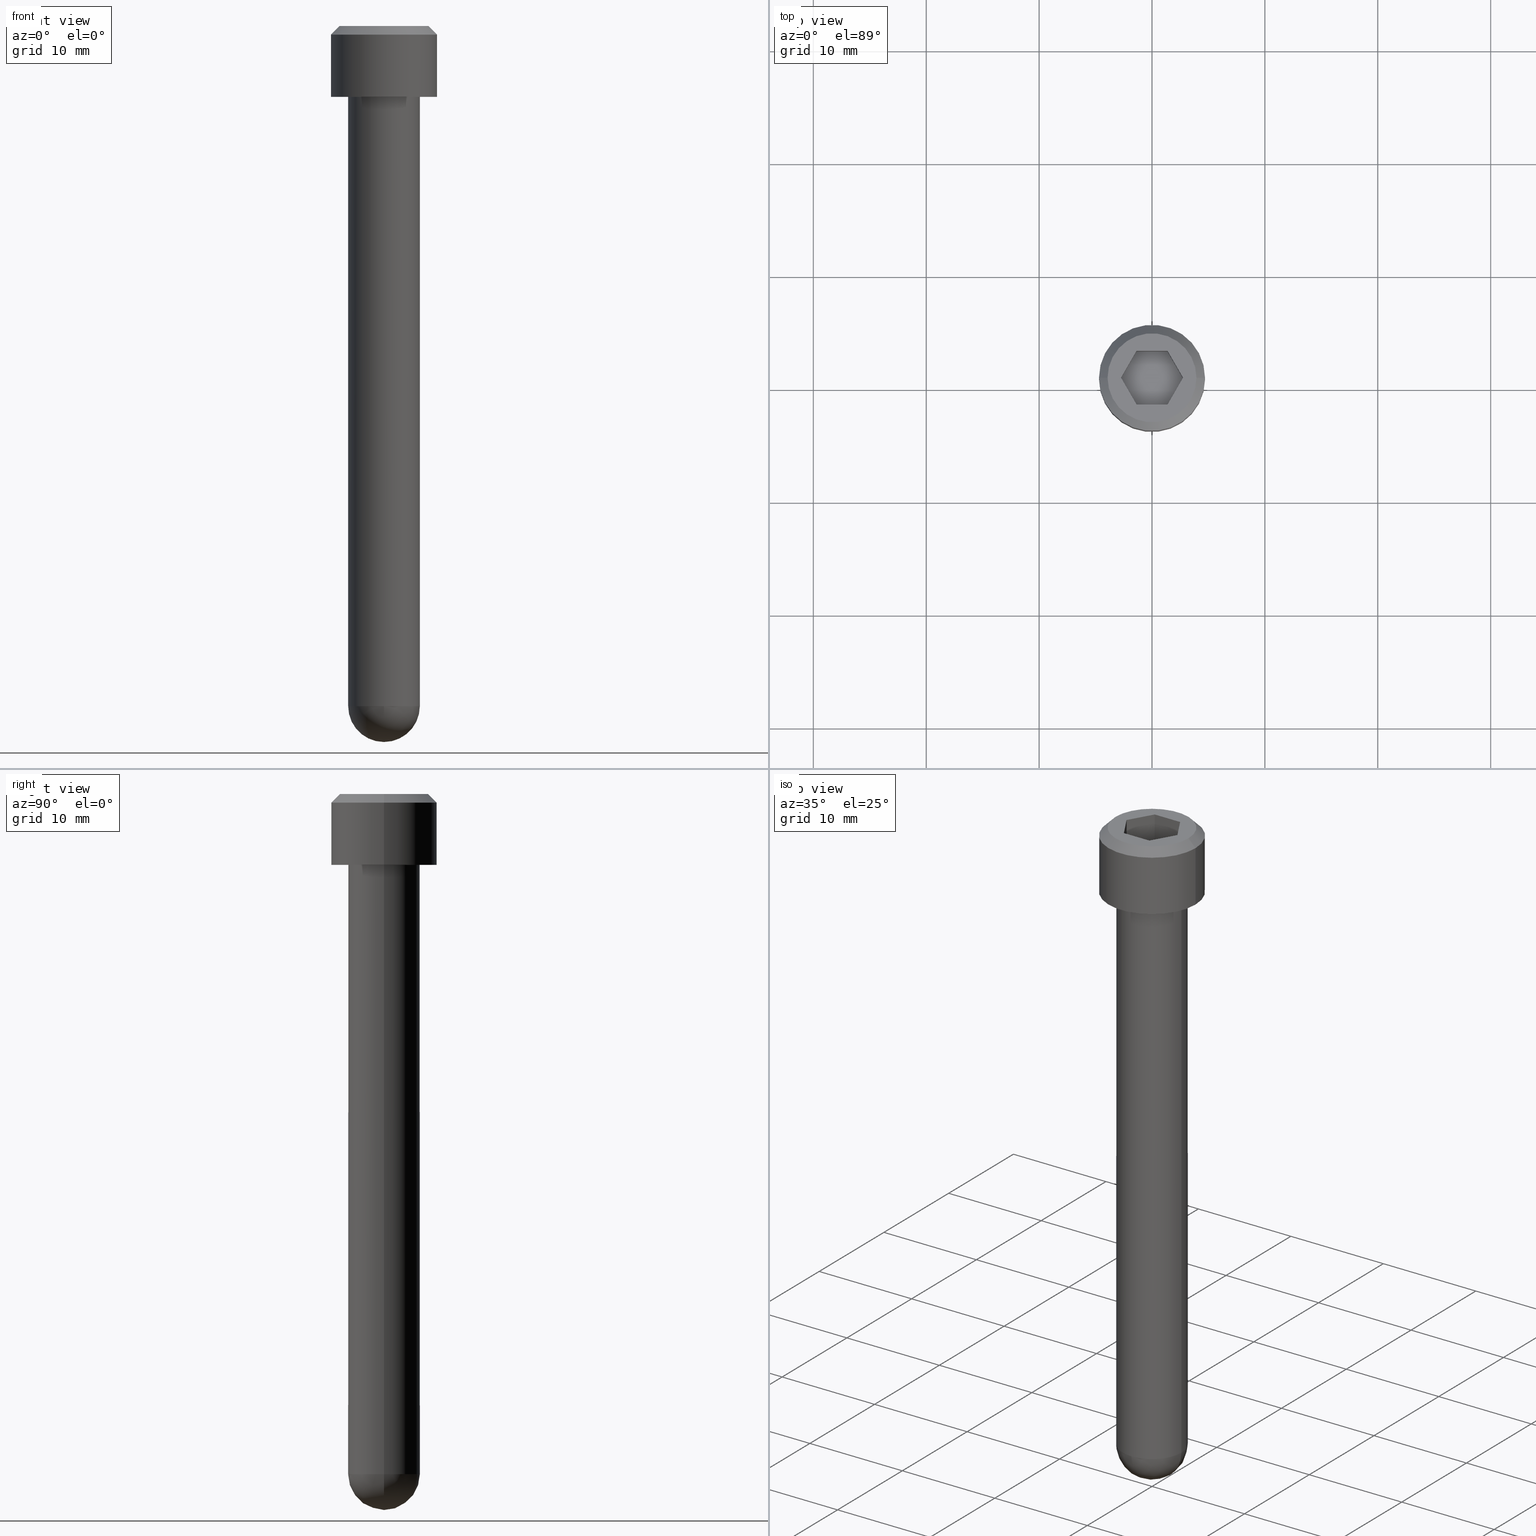
[diagram: canonical four-view strip — front | top / right | iso, engineering-drawing reading convention]
A machine part, canonical four-view strip (front | top / right | iso — engineering-drawing reading convention). The complete STEP part file that produces these views, byte-faithful:
ISO-10303-21;
HEADER;
FILE_DESCRIPTION (( 'STEP AP214' ),
    '1' );
FILE_NAME ('D030022-v1_aLIGO_Rounded_End_SHCS_0.25-20_X_2.25_Long.STEP',
    '2011-03-21T16:55:47',
    ( '' ),
    ( '' ),
    'SwSTEP 2.0',
    'SolidWorks 2010',
    '' );
FILE_SCHEMA (( 'AUTOMOTIVE_DESIGN' ));
ENDSEC;

DATA;
#1 = PRODUCT_DEFINITION_CONTEXT ( 'detailed design', #280, 'design' ) ;
#2 = PRODUCT_DEFINITION_SHAPE ( 'NONE', 'NONE',  #72 ) ;
#3 = AXIS2_PLACEMENT_3D ( 'NONE', #85, #119, #131 ) ;
#4 = AXIS2_PLACEMENT_3D ( 'NONE', #99, #127, #140 ) ;
#5 = EDGE_CURVE ( 'NONE', #193, #83, #427, .T. ) ;
#6 = EDGE_CURVE ( 'NONE', #82, #91, #375, .T. ) ;
#7 = EDGE_CURVE ( 'NONE', #263, #174, #424, .T. ) ;
#8 = EDGE_CURVE ( 'NONE', #174, #263, #445, .T. ) ;
#9 = EDGE_CURVE ( 'NONE', #192, #195, #485, .T. ) ;
#10 = EDGE_CURVE ( 'NONE', #129, #84, #480, .T. ) ;
#11 = MECHANICAL_DESIGN_GEOMETRIC_PRESENTATION_REPRESENTATION (  '', ( #28 ), #323 ) ;
#12 = EDGE_CURVE ( 'NONE', #194, #195, #501, .T. ) ;
#13 = AXIS2_PLACEMENT_3D ( 'NONE', #112, #111, #101 ) ;
#14 = EDGE_CURVE ( 'NONE', #78, #177, #500, .T. ) ;
#15 = AXIS2_PLACEMENT_3D ( 'NONE', #282, #279, #278 ) ;
#16 = AXIS2_PLACEMENT_3D ( 'NONE', #266, #275, #293 ) ;
#17 = EDGE_CURVE ( 'NONE', #188, #78, #444, .T. ) ;
#18 = AXIS2_PLACEMENT_3D ( 'NONE', #138, #162, #130 ) ;
#19 = EDGE_CURVE ( 'NONE', #83, #193, #470, .T. ) ;
#20 = EDGE_CURVE ( 'NONE', #126, #192, #324, .T. ) ;
#21 = EDGE_CURVE ( 'NONE', #78, #126, #345, .T. ) ;
#22 = AXIS2_PLACEMENT_3D ( 'NONE', #237, #238, #210 ) ;
#23 = AXIS2_PLACEMENT_3D ( 'NONE', #107, #93, #128 ) ;
#24 = AXIS2_PLACEMENT_3D ( 'NONE', #146, #160, #165 ) ;
#25 = AXIS2_PLACEMENT_3D ( 'NONE', #200, #169, #167 ) ;
#26 = AXIS2_PLACEMENT_3D ( 'NONE', #227, #216, #220 ) ;
#27 = AXIS2_PLACEMENT_3D ( 'NONE', #259, #260, #277 ) ;
#28 = STYLED_ITEM ( 'NONE', ( #503 ), #316 ) ;
#29 = AXIS2_PLACEMENT_3D ( 'NONE', #151, #202, #201 ) ;
#30 = AXIS2_PLACEMENT_3D ( 'NONE', #219, #199, #289 ) ;
#31 = PRESENTATION_LAYER_ASSIGNMENT (  '', '', ( #46 ) ) ;
#32 = AXIS2_PLACEMENT_3D ( 'NONE', #248, #176, #89 ) ;
#33 = AXIS2_PLACEMENT_3D ( 'NONE', #80, #102, #161 ) ;
#34 = EDGE_CURVE ( 'NONE', #123, #110, #341, .T. ) ;
#35 = EDGE_CURVE ( 'NONE', #129, #175, #352, .T. ) ;
#36 = EDGE_CURVE ( 'NONE', #189, #115, #421, .T. ) ;
#37 = EDGE_CURVE ( 'NONE', #188, #211, #448, .T. ) ;
#38 = EDGE_CURVE ( 'NONE', #177, #194, #474, .T. ) ;
#39 = EDGE_CURVE ( 'NONE', #192, #123, #416, .T. ) ;
#40 = EDGE_CURVE ( 'NONE', #174, #83, #388, .T. ) ;
#41 = AXIS2_PLACEMENT_3D ( 'NONE', #105, #136, #137 ) ;
#42 = EDGE_CURVE ( 'NONE', #195, #79, #428, .T. ) ;
#43 = PRODUCT_RELATED_PRODUCT_CATEGORY ( 'part', '', ( #513 ) ) ;
#44 = AXIS2_PLACEMENT_3D ( 'NONE', #294, #214, #171 ) ;
#45 = EDGE_CURVE ( 'NONE', #91, #82, #398, .T. ) ;
#46 = STYLED_ITEM ( 'NONE', ( #367 ), #320 ) ;
#47 = EDGE_CURVE ( 'NONE', #126, #194, #401, .T. ) ;
#48 = EDGE_CURVE ( 'NONE', #175, #82, #496, .T. ) ;
#49 = EDGE_CURVE ( 'NONE', #189, #83, #492, .T. ) ;
#50 = EDGE_CURVE ( 'NONE', #115, #189, #333, .T. ) ;
#51 = EDGE_CURVE ( 'NONE', #208, #211, #381, .T. ) ;
#52 = EDGE_CURVE ( 'NONE', #79, #208, #459, .T. ) ;
#53 = EDGE_CURVE ( 'NONE', #211, #177, #356, .T. ) ;
#54 = EDGE_CURVE ( 'NONE', #123, #79, #331, .T. ) ;
#55 = EDGE_CURVE ( 'NONE', #110, #188, #469, .T. ) ;
#56 = EDGE_CURVE ( 'NONE', #263, #193, #456, .T. ) ;
#57 = EDGE_CURVE ( 'NONE', #110, #208, #477, .T. ) ;
#58 = EDGE_CURVE ( 'NONE', #84, #91, #499, .T. ) ;
#59 = AXIS2_PLACEMENT_3D ( 'NONE', #106, #178, #90 ) ;
#60 = AXIS2_PLACEMENT_3D ( 'NONE', #134, #172, #255 ) ;
#61 = AXIS2_PLACEMENT_3D ( 'NONE', #156, #153, #143 ) ;
#62 = EDGE_CURVE ( 'NONE', #175, #84, #390, .T. ) ;
#63 = AXIS2_PLACEMENT_3D ( 'NONE', #215, #218, #223 ) ;
#64 = AXIS2_PLACEMENT_3D ( 'NONE', #88, #157, #86 ) ;
#65 = AXIS2_PLACEMENT_3D ( 'NONE', #203, #261, #292 ) ;
#66 = AXIS2_PLACEMENT_3D ( 'NONE', #164, #286, #287 ) ;
#67 = AXIS2_PLACEMENT_3D ( 'NONE', #170, #221, #222 ) ;
#68 = AXIS2_PLACEMENT_3D ( 'NONE', #228, #212, #226 ) ;
#69 = AXIS2_PLACEMENT_3D ( 'NONE', #288, #291, #290 ) ;
#70 = AXIS2_PLACEMENT_3D ( 'NONE', #225, #213, #274 ) ;
#71 = MECHANICAL_DESIGN_GEOMETRIC_PRESENTATION_REPRESENTATION (  '', ( #46 ), #446 ) ;
#72 = PRODUCT_DEFINITION ( 'UNKNOWN', '', #74, #1 ) ;
#73 = AXIS2_PLACEMENT_3D ( 'NONE', #144, #159, #154 ) ;
#74 = PRODUCT_DEFINITION_FORMATION_WITH_SPECIFIED_SOURCE ( 'ANY', '', #513, .NOT_KNOWN. ) ;
#75 = PRESENTATION_LAYER_ASSIGNMENT (  '', '', ( #28 ) ) ;
#76 = EDGE_CURVE ( 'NONE', #115, #193, #509, .T. ) ;
#77 = EDGE_CURVE ( 'NONE', #84, #175, #346, .T. ) ;
#78 = VERTEX_POINT ( 'NONE', #104 ) ;
#79 = VERTEX_POINT ( 'NONE', #249 ) ;
#80 = CARTESIAN_POINT ( 'NONE',  ( 0.0000000000000000000, 0.0000000000000000000, 0.0000000000000000000 ) ) ;
#81 = CARTESIAN_POINT ( 'NONE',  ( -0.05412658773652744700, 0.09375000000000002800, -0.1200000000000000000 ) ) ;
#82 = VERTEX_POINT ( 'NONE', #120 ) ;
#83 = VERTEX_POINT ( 'NONE', #117 ) ;
#84 = VERTEX_POINT ( 'NONE', #108 ) ;
#85 = CARTESIAN_POINT ( 'NONE',  ( 0.0000000000000000000, 0.0000000000000000000, -0.03000000000000012400 ) ) ;
#86 = DIRECTION ( 'NONE',  ( 1.000000000000000000, 0.0000000000000000000, 0.0000000000000000000 ) ) ;
#87 = CARTESIAN_POINT ( 'NONE',  ( -0.1549999999999999400, 0.0000000000000000000, 0.0000000000000000000 ) ) ;
#88 = CARTESIAN_POINT ( 'NONE',  ( 0.0000000000000000000, 0.0000000000000000000, -0.2469999999999998600 ) ) ;
#89 = DIRECTION ( 'NONE',  ( 1.000000000000000000, 0.0000000000000000000, 0.0000000000000000000 ) ) ;
#90 = DIRECTION ( 'NONE',  ( 0.0000000000000000000, 0.0000000000000000000, -1.000000000000000000 ) ) ;
#91 = VERTEX_POINT ( 'NONE', #97 ) ;
#92 = CARTESIAN_POINT ( 'NONE',  ( 0.1082531754730548500, 6.797912345839970600E-018, -0.1200000000000000000 ) ) ;
#93 = DIRECTION ( 'NONE',  ( -0.0000000000000000000, -0.0000000000000000000, 1.000000000000000000 ) ) ;
#94 = DIRECTION ( 'NONE',  ( -0.0000000000000000000, -0.0000000000000000000, 1.000000000000000000 ) ) ;
#95 = CARTESIAN_POINT ( 'NONE',  ( 0.1850000000000000000, 0.0000000000000000000, -0.03000000000000012400 ) ) ;
#96 = CARTESIAN_POINT ( 'NONE',  ( 7.654042494670957500E-018, 0.0000000000000000000, -2.497000000000000300 ) ) ;
#97 = CARTESIAN_POINT ( 'NONE',  ( 0.1250000000000000000, 0.0000000000000000000, -0.2469999999999998600 ) ) ;
#98 = CARTESIAN_POINT ( 'NONE',  ( 0.1850000000000000000, 0.0000000000000000000, -0.2470000000000000000 ) ) ;
#99 = CARTESIAN_POINT ( 'NONE',  ( 0.0000000000000000000, 0.0000000000000000000, -0.2470000000000000000 ) ) ;
#100 = CARTESIAN_POINT ( 'NONE',  ( 0.1082531754730548500, 6.797912345839970600E-018, -0.1200000000000000000 ) ) ;
#101 = DIRECTION ( 'NONE',  ( 1.000000000000000000, 0.0000000000000000000, 0.0000000000000000000 ) ) ;
#102 = DIRECTION ( 'NONE',  ( 0.0000000000000000000, 0.0000000000000000000, 1.000000000000000000 ) ) ;
#103 = CARTESIAN_POINT ( 'NONE',  ( 0.1549999999999999400, 1.898202538678397000E-017, 0.0000000000000000000 ) ) ;
#104 = CARTESIAN_POINT ( 'NONE',  ( 0.05412658773652740500, 0.09375000000000002800, -0.1200000000000000000 ) ) ;
#105 = CARTESIAN_POINT ( 'NONE',  ( 0.0000000000000000000, 0.0000000000000000000, -0.2469999999999998600 ) ) ;
#106 = CARTESIAN_POINT ( 'NONE',  ( 0.0000000000000000000, 0.0000000000000000000, -2.372000000000000300 ) ) ;
#107 = CARTESIAN_POINT ( 'NONE',  ( 0.0000000000000000000, 0.0000000000000000000, -2.372000000000000300 ) ) ;
#108 = CARTESIAN_POINT ( 'NONE',  ( 0.1250000000000000000, 0.0000000000000000000, -2.372000000000000300 ) ) ;
#109 = CARTESIAN_POINT ( 'NONE',  ( -0.1082531754730548500, -1.708292841017771400E-017, -0.1200000000000000000 ) ) ;
#110 = VERTEX_POINT ( 'NONE', #122 ) ;
#111 = DIRECTION ( 'NONE',  ( 0.0000000000000000000, 0.0000000000000000000, -1.000000000000000000 ) ) ;
#112 = CARTESIAN_POINT ( 'NONE',  ( 0.0000000000000000000, 0.0000000000000000000, -0.03000000000000012400 ) ) ;
#113 = CARTESIAN_POINT ( 'NONE',  ( 0.05412658773652740500, 0.09375000000000002800, 0.0000000000000000000 ) ) ;
#114 = CARTESIAN_POINT ( 'NONE',  ( -0.05412658773652744700, 0.09375000000000002800, 0.0000000000000000000 ) ) ;
#115 = VERTEX_POINT ( 'NONE', #206 ) ;
#116 = CARTESIAN_POINT ( 'NONE',  ( 0.05412658773652740500, 0.09375000000000002800, -0.1200000000000000000 ) ) ;
#117 = CARTESIAN_POINT ( 'NONE',  ( -0.1850000000000000000, 2.265596578422603000E-017, -0.03000000000000012400 ) ) ;
#118 = DIRECTION ( 'NONE',  ( -0.0000000000000000000, -0.0000000000000000000, 1.000000000000000000 ) ) ;
#119 = DIRECTION ( 'NONE',  ( 0.0000000000000000000, 0.0000000000000000000, -1.000000000000000000 ) ) ;
#120 = CARTESIAN_POINT ( 'NONE',  ( -0.1250000000000000000, 1.530808498934191500E-017, -0.2469999999999998600 ) ) ;
#121 = CARTESIAN_POINT ( 'NONE',  ( -0.1850000000000000000, 2.265596578422603000E-017, -0.2470000000000000000 ) ) ;
#122 = CARTESIAN_POINT ( 'NONE',  ( 0.05412658773652744700, -0.09375000000000002800, -0.1200000000000000000 ) ) ;
#123 = VERTEX_POINT ( 'NONE', #209 ) ;
#124 = CARTESIAN_POINT ( 'NONE',  ( -0.05412658773652744700, 0.09375000000000002800, 0.0000000000000000000 ) ) ;
#125 = CARTESIAN_POINT ( 'NONE',  ( -0.1082531754730548500, -1.708292841017771400E-017, 0.0000000000000000000 ) ) ;
#126 = VERTEX_POINT ( 'NONE', #190 ) ;
#127 = DIRECTION ( 'NONE',  ( 0.0000000000000000000, 0.0000000000000000000, 1.000000000000000000 ) ) ;
#128 = DIRECTION ( 'NONE',  ( 1.000000000000000000, 0.0000000000000000000, 0.0000000000000000000 ) ) ;
#129 = VERTEX_POINT ( 'NONE', #96 ) ;
#130 = DIRECTION ( 'NONE',  ( 1.000000000000000000, 0.0000000000000000000, 0.0000000000000000000 ) ) ;
#131 = DIRECTION ( 'NONE',  ( 1.000000000000000000, 0.0000000000000000000, 0.0000000000000000000 ) ) ;
#132 = CARTESIAN_POINT ( 'NONE',  ( -0.05412658773652744700, 0.09375000000000002800, -0.1200000000000000000 ) ) ;
#133 = DIRECTION ( 'NONE',  ( -0.4999999999999998300, -0.8660254037844388200, 0.0000000000000000000 ) ) ;
#134 = CARTESIAN_POINT ( 'NONE',  ( 0.0000000000000000000, 0.0000000000000000000, -2.372000000000000300 ) ) ;
#135 = CARTESIAN_POINT ( 'NONE',  ( -0.05412658773652741900, -0.09375000000000002800, -0.1200000000000000000 ) ) ;
#136 = DIRECTION ( 'NONE',  ( -0.0000000000000000000, -0.0000000000000000000, -1.000000000000000000 ) ) ;
#137 = DIRECTION ( 'NONE',  ( 1.000000000000000000, 0.0000000000000000000, 0.0000000000000000000 ) ) ;
#138 = CARTESIAN_POINT ( 'NONE',  ( 0.0000000000000000000, 0.0000000000000000000, -0.2470000000000000000 ) ) ;
#139 = DIRECTION ( 'NONE',  ( 1.000000000000000000, 0.0000000000000000000, 0.0000000000000000000 ) ) ;
#140 = DIRECTION ( 'NONE',  ( 1.000000000000000000, 0.0000000000000000000, 0.0000000000000000000 ) ) ;
#141 = CARTESIAN_POINT ( 'NONE',  ( 0.1850000000000000000, 0.0000000000000000000, -0.2470000000000000000 ) ) ;
#142 = DIRECTION ( 'NONE',  ( -0.5000000000000001100, 0.8660254037844384900, 0.0000000000000000000 ) ) ;
#143 = DIRECTION ( 'NONE',  ( 1.000000000000000000, 0.0000000000000000000, 0.0000000000000000000 ) ) ;
#144 = CARTESIAN_POINT ( 'NONE',  ( 0.0000000000000000000, 0.0000000000000000000, -0.2470000000000000000 ) ) ;
#145 = PLANE ( 'NONE',  #73 ) ;
#146 = CARTESIAN_POINT ( 'NONE',  ( -0.05412658773652741900, -0.09375000000000002800, -0.1200000000000000000 ) ) ;
#147 =( NAMED_UNIT ( * ) PLANE_ANGLE_UNIT ( ) SI_UNIT ( $, .RADIAN. ) );
#148 = PLANE ( 'NONE',  #24 ) ;
#149 = DIRECTION ( 'NONE',  ( -0.4999999999999998300, -0.8660254037844388200, 0.0000000000000000000 ) ) ;
#150 = FILL_AREA_STYLE_COLOUR ( '', #481 ) ;
#151 = CARTESIAN_POINT ( 'NONE',  ( 0.0000000000000000000, 0.0000000000000000000, 0.0000000000000000000 ) ) ;
#152 = DIRECTION ( 'NONE',  ( -0.7071067811865466800, 0.0000000000000000000, -0.7071067811865483500 ) ) ;
#153 = DIRECTION ( 'NONE',  ( 0.0000000000000000000, 0.0000000000000000000, 1.000000000000000000 ) ) ;
#154 = DIRECTION ( 'NONE',  ( 1.000000000000000000, 0.0000000000000000000, -0.0000000000000000000 ) ) ;
#155 =( CONVERSION_BASED_UNIT ( 'INCH', #431 ) LENGTH_UNIT ( ) NAMED_UNIT ( #298 ) );
#156 = CARTESIAN_POINT ( 'NONE',  ( 0.0000000000000000000, 0.0000000000000000000, -0.2470000000000000000 ) ) ;
#157 = DIRECTION ( 'NONE',  ( -0.0000000000000000000, -0.0000000000000000000, -1.000000000000000000 ) ) ;
#158 = CARTESIAN_POINT ( 'NONE',  ( 0.1082531754730548800, 0.0000000000000000000, 0.0000000000000000000 ) ) ;
#159 = DIRECTION ( 'NONE',  ( 0.0000000000000000000, 0.0000000000000000000, 1.000000000000000000 ) ) ;
#160 = DIRECTION ( 'NONE',  ( 0.0000000000000000000, -1.000000000000000000, 0.0000000000000000000 ) ) ;
#161 = DIRECTION ( 'NONE',  ( 1.000000000000000000, 0.0000000000000000000, 0.0000000000000000000 ) ) ;
#162 = DIRECTION ( 'NONE',  ( 0.0000000000000000000, 0.0000000000000000000, 1.000000000000000000 ) ) ;
#163 = CARTESIAN_POINT ( 'NONE',  ( -0.05412658773652741900, -0.09375000000000002800, 0.0000000000000000000 ) ) ;
#164 = CARTESIAN_POINT ( 'NONE',  ( -0.1082531754730548500, -1.708292841017771400E-017, -0.1200000000000000000 ) ) ;
#165 = DIRECTION ( 'NONE',  ( 0.0000000000000000000, -0.0000000000000000000, -1.000000000000000000 ) ) ;
#166 = CARTESIAN_POINT ( 'NONE',  ( 0.05412658773652744700, -0.09375000000000002800, 0.0000000000000000000 ) ) ;
#167 = DIRECTION ( 'NONE',  ( 0.0000000000000000000, -0.0000000000000000000, 1.000000000000000000 ) ) ;
#168 = CARTESIAN_POINT ( 'NONE',  ( 0.05412658773652740500, 0.09375000000000002800, -0.1200000000000000000 ) ) ;
#169 = DIRECTION ( 'NONE',  ( 0.0000000000000000000, 1.000000000000000000, 0.0000000000000000000 ) ) ;
#170 = CARTESIAN_POINT ( 'NONE',  ( -0.05412658773652744700, 0.09375000000000002800, -0.1200000000000000000 ) ) ;
#171 = DIRECTION ( 'NONE',  ( 1.000000000000000000, 0.0000000000000000000, -0.0000000000000000000 ) ) ;
#172 = DIRECTION ( 'NONE',  ( 1.224646799147353200E-016, 1.000000000000000000, -0.0000000000000000000 ) ) ;
#173 = DIRECTION ( 'NONE',  ( -0.0000000000000000000, -0.0000000000000000000, 1.000000000000000000 ) ) ;
#174 = VERTEX_POINT ( 'NONE', #121 ) ;
#175 = VERTEX_POINT ( 'NONE', #179 ) ;
#176 = DIRECTION ( 'NONE',  ( -0.0000000000000000000, -0.0000000000000000000, 1.000000000000000000 ) ) ;
#177 = VERTEX_POINT ( 'NONE', #113 ) ;
#178 = DIRECTION ( 'NONE',  ( 0.0000000000000000000, -1.000000000000000000, 0.0000000000000000000 ) ) ;
#179 = CARTESIAN_POINT ( 'NONE',  ( -0.1250000000000000000, 1.530808498934191500E-017, -2.372000000000000300 ) ) ;
#180 = DIRECTION ( 'NONE',  ( -1.000000000000000000, 0.0000000000000000000, 0.0000000000000000000 ) ) ;
#181 = CARTESIAN_POINT ( 'NONE',  ( 0.1082531754730548500, 6.797912345839970600E-018, -0.1200000000000000000 ) ) ;
#182 = CARTESIAN_POINT ( 'NONE',  ( 0.05412658773652740500, 0.09375000000000002800, 0.0000000000000000000 ) ) ;
#183 =( LENGTH_UNIT ( ) NAMED_UNIT ( * ) SI_UNIT ( $, .METRE. ) );
#184 = SURFACE_STYLE_USAGE ( .BOTH. , #229 ) ;
#185 =( LENGTH_UNIT ( ) NAMED_UNIT ( * ) SI_UNIT ( $, .METRE. ) );
#186 =( CONVERSION_BASED_UNIT ( 'INCH', #384 ) LENGTH_UNIT ( ) NAMED_UNIT ( #301 ) );
#187 =( NAMED_UNIT ( * ) SI_UNIT ( $, .STERADIAN. ) SOLID_ANGLE_UNIT ( ) );
#188 = VERTEX_POINT ( 'NONE', #100 ) ;
#189 = VERTEX_POINT ( 'NONE', #198 ) ;
#190 = CARTESIAN_POINT ( 'NONE',  ( -0.05412658773652744700, 0.09375000000000002800, -0.1200000000000000000 ) ) ;
#191 = DIRECTION ( 'NONE',  ( -0.0000000000000000000, -0.0000000000000000000, 1.000000000000000000 ) ) ;
#192 = VERTEX_POINT ( 'NONE', #197 ) ;
#193 = VERTEX_POINT ( 'NONE', #95 ) ;
#194 = VERTEX_POINT ( 'NONE', #124 ) ;
#195 = VERTEX_POINT ( 'NONE', #125 ) ;
#196 = DIRECTION ( 'NONE',  ( 0.7071067811865466800, 8.659560562354923000E-017, -0.7071067811865483500 ) ) ;
#197 = CARTESIAN_POINT ( 'NONE',  ( -0.1082531754730548500, -1.708292841017771400E-017, -0.1200000000000000000 ) ) ;
#198 = CARTESIAN_POINT ( 'NONE',  ( -0.1549999999999999400, 0.0000000000000000000, 0.0000000000000000000 ) ) ;
#199 = DIRECTION ( 'NONE',  ( 0.0000000000000000000, 0.0000000000000000000, 1.000000000000000000 ) ) ;
#200 = CARTESIAN_POINT ( 'NONE',  ( 0.05412658773652740500, 0.09375000000000002800, -0.1200000000000000000 ) ) ;
#201 = DIRECTION ( 'NONE',  ( 1.000000000000000000, 0.0000000000000000000, -0.0000000000000000000 ) ) ;
#202 = DIRECTION ( 'NONE',  ( 0.0000000000000000000, 0.0000000000000000000, 1.000000000000000000 ) ) ;
#203 = CARTESIAN_POINT ( 'NONE',  ( 0.0000000000000000000, 0.0000000000000000000, -2.497000000000000300 ) ) ;
#204 = PLANE ( 'NONE',  #44 ) ;
#205 = PLANE ( 'NONE',  #69 ) ;
#206 = CARTESIAN_POINT ( 'NONE',  ( 0.1549999999999999400, 2.081899558550500500E-017, 0.0000000000000000000 ) ) ;
#207 = PLANE ( 'NONE',  #67 ) ;
#208 = VERTEX_POINT ( 'NONE', #166 ) ;
#209 = CARTESIAN_POINT ( 'NONE',  ( -0.05412658773652741900, -0.09375000000000002800, -0.1200000000000000000 ) ) ;
#210 = DIRECTION ( 'NONE',  ( 1.000000000000000000, 0.0000000000000000000, 0.0000000000000000000 ) ) ;
#211 = VERTEX_POINT ( 'NONE', #158 ) ;
#212 = DIRECTION ( 'NONE',  ( 0.0000000000000000000, 0.0000000000000000000, -1.000000000000000000 ) ) ;
#213 = DIRECTION ( 'NONE',  ( 0.0000000000000000000, 1.000000000000000000, 0.0000000000000000000 ) ) ;
#214 = DIRECTION ( 'NONE',  ( 0.0000000000000000000, -0.0000000000000000000, 1.000000000000000000 ) ) ;
#215 = CARTESIAN_POINT ( 'NONE',  ( 0.1082531754730548500, 6.797912345839970600E-018, -0.1200000000000000000 ) ) ;
#216 = DIRECTION ( 'NONE',  ( -0.0000000000000000000, -0.0000000000000000000, 1.000000000000000000 ) ) ;
#217 = PLANE ( 'NONE',  #63 ) ;
#218 = DIRECTION ( 'NONE',  ( 0.8660254037844386000, 0.5000000000000002200, 0.0000000000000000000 ) ) ;
#219 = CARTESIAN_POINT ( 'NONE',  ( 0.0000000000000000000, 0.0000000000000000000, -0.2470000000000000000 ) ) ;
#220 = DIRECTION ( 'NONE',  ( 1.000000000000000000, 0.0000000000000000000, 0.0000000000000000000 ) ) ;
#221 = DIRECTION ( 'NONE',  ( -0.8660254037844388200, 0.4999999999999997200, 0.0000000000000000000 ) ) ;
#222 = DIRECTION ( 'NONE',  ( -0.4999999999999997200, -0.8660254037844388200, 0.0000000000000000000 ) ) ;
#223 = DIRECTION ( 'NONE',  ( -0.5000000000000001100, 0.8660254037844384900, 0.0000000000000000000 ) ) ;
#224 = FILL_AREA_STYLE_COLOUR ( '', #486 ) ;
#225 = CARTESIAN_POINT ( 'NONE',  ( 0.0000000000000000000, 0.0000000000000000000, -2.372000000000000300 ) ) ;
#226 = DIRECTION ( 'NONE',  ( -1.000000000000000000, 0.0000000000000000000, 0.0000000000000000000 ) ) ;
#227 = CARTESIAN_POINT ( 'NONE',  ( 0.0000000000000000000, 0.0000000000000000000, -2.497000000000000300 ) ) ;
#228 = CARTESIAN_POINT ( 'NONE',  ( 0.0000000000000000000, 0.0000000000000000000, 0.0000000000000000000 ) ) ;
#229 = SURFACE_SIDE_STYLE ('',( #483 ) ) ;
#230 = DIRECTION ( 'NONE',  ( -1.000000000000000000, 0.0000000000000000000, 0.0000000000000000000 ) ) ;
#231 = CARTESIAN_POINT ( 'NONE',  ( -0.1250000000000000000, 1.530808498934191500E-017, -2.497000000000000300 ) ) ;
#232 = CARTESIAN_POINT ( 'NONE',  ( -0.1850000000000000000, 2.265596578422603000E-017, -0.2470000000000000000 ) ) ;
#233 = DIRECTION ( 'NONE',  ( 0.5000000000000002200, -0.8660254037844386000, 0.0000000000000000000 ) ) ;
#234 = CARTESIAN_POINT ( 'NONE',  ( -0.1082531754730548500, -1.708292841017771400E-017, -0.1200000000000000000 ) ) ;
#235 = CARTESIAN_POINT ( 'NONE',  ( 0.05412658773652744700, -0.09375000000000002800, -0.1200000000000000000 ) ) ;
#236 = DIRECTION ( 'NONE',  ( 0.0000000000000000000, 0.0000000000000000000, 1.000000000000000000 ) ) ;
#237 = CARTESIAN_POINT ( 'NONE',  ( 0.0000000000000000000, 0.0000000000000000000, 0.0000000000000000000 ) ) ;
#238 = DIRECTION ( 'NONE',  ( 0.0000000000000000000, 0.0000000000000000000, 1.000000000000000000 ) ) ;
#239 = DIRECTION ( 'NONE',  ( -0.0000000000000000000, -0.0000000000000000000, 1.000000000000000000 ) ) ;
#240 = CARTESIAN_POINT ( 'NONE',  ( 0.1250000000000000000, 0.0000000000000000000, -2.497000000000000300 ) ) ;
#241 = DIRECTION ( 'NONE',  ( -0.0000000000000000000, -0.0000000000000000000, 1.000000000000000000 ) ) ;
#242 = DIRECTION ( 'NONE',  ( 0.0000000000000000000, 0.0000000000000000000, 1.000000000000000000 ) ) ;
#243 = DIRECTION ( 'NONE',  ( -0.0000000000000000000, -0.0000000000000000000, 1.000000000000000000 ) ) ;
#244 = DIRECTION ( 'NONE',  ( -0.5000000000000001100, 0.8660254037844384900, 0.0000000000000000000 ) ) ;
#245 = CARTESIAN_POINT ( 'NONE',  ( -0.05412658773652741900, -0.09375000000000002800, -0.1200000000000000000 ) ) ;
#246 = DIRECTION ( 'NONE',  ( 1.000000000000000000, 0.0000000000000000000, 0.0000000000000000000 ) ) ;
#247 = CARTESIAN_POINT ( 'NONE',  ( 0.1082531754730548500, 6.797912345839970600E-018, 0.0000000000000000000 ) ) ;
#248 = CARTESIAN_POINT ( 'NONE',  ( 0.0000000000000000000, 0.0000000000000000000, -2.372000000000000300 ) ) ;
#249 = CARTESIAN_POINT ( 'NONE',  ( -0.05412658773652741900, -0.09375000000000002800, 0.0000000000000000000 ) ) ;
#250 = DIRECTION ( 'NONE',  ( -0.0000000000000000000, -0.0000000000000000000, 1.000000000000000000 ) ) ;
#251 = DIRECTION ( 'NONE',  ( 0.5000000000000002200, -0.8660254037844386000, 0.0000000000000000000 ) ) ;
#252 = CARTESIAN_POINT ( 'NONE',  ( -0.1082531754730548500, -1.708292841017771400E-017, 0.0000000000000000000 ) ) ;
#253 = DIRECTION ( 'NONE',  ( 0.4999999999999998300, 0.8660254037844388200, 0.0000000000000000000 ) ) ;
#254 = CARTESIAN_POINT ( 'NONE',  ( 0.05412658773652744700, -0.09375000000000002800, -0.1200000000000000000 ) ) ;
#255 = DIRECTION ( 'NONE',  ( -1.000000000000000000, 1.224646799147353200E-016, 0.0000000000000000000 ) ) ;
#256 = CARTESIAN_POINT ( 'NONE',  ( 0.05412658773652744700, -0.09375000000000002800, 0.0000000000000000000 ) ) ;
#257 = DIRECTION ( 'NONE',  ( 0.4999999999999998300, 0.8660254037844388200, 0.0000000000000000000 ) ) ;
#258 =( NAMED_UNIT ( * ) SI_UNIT ( $, .STERADIAN. ) SOLID_ANGLE_UNIT ( ) );
#259 = CARTESIAN_POINT ( 'NONE',  ( 0.0000000000000000000, 0.0000000000000000000, 0.0000000000000000000 ) ) ;
#260 = DIRECTION ( 'NONE',  ( 0.0000000000000000000, 0.0000000000000000000, 1.000000000000000000 ) ) ;
#261 = DIRECTION ( 'NONE',  ( -0.0000000000000000000, -0.0000000000000000000, 1.000000000000000000 ) ) ;
#262 = APPLICATION_PROTOCOL_DEFINITION ( 'draft international standard', 'automotive_design', 1998, #265 ) ;
#263 = VERTEX_POINT ( 'NONE', #141 ) ;
#264 =( NAMED_UNIT ( * ) PLANE_ANGLE_UNIT ( ) SI_UNIT ( $, .RADIAN. ) );
#265 = APPLICATION_CONTEXT ( 'automotive_design' ) ;
#266 = CARTESIAN_POINT ( 'NONE',  ( 0.0000000000000000000, 0.0000000000000000000, -2.372000000000000300 ) ) ;
#267 =( NAMED_UNIT ( * ) PLANE_ANGLE_UNIT ( ) SI_UNIT ( $, .RADIAN. ) );
#268 =( LENGTH_UNIT ( ) NAMED_UNIT ( * ) SI_UNIT ( $, .METRE. ) );
#269 =( CONVERSION_BASED_UNIT ( 'INCH', #395 ) LENGTH_UNIT ( ) NAMED_UNIT ( #300 ) );
#270 = SURFACE_STYLE_USAGE ( .BOTH. , #271 ) ;
#271 = SURFACE_SIDE_STYLE ('',( #380 ) ) ;
#272 = FILL_AREA_STYLE ('',( #224 ) ) ;
#273 = FILL_AREA_STYLE ('',( #150 ) ) ;
#274 = DIRECTION ( 'NONE',  ( 1.000000000000000000, 0.0000000000000000000, 0.0000000000000000000 ) ) ;
#275 = DIRECTION ( 'NONE',  ( 0.0000000000000000000, 1.000000000000000000, 0.0000000000000000000 ) ) ;
#276 = PLANE ( 'NONE',  #25 ) ;
#277 = DIRECTION ( 'NONE',  ( 1.000000000000000000, 0.0000000000000000000, 0.0000000000000000000 ) ) ;
#278 = DIRECTION ( 'NONE',  ( -1.000000000000000000, 0.0000000000000000000, 0.0000000000000000000 ) ) ;
#279 = DIRECTION ( 'NONE',  ( 0.0000000000000000000, 0.0000000000000000000, -1.000000000000000000 ) ) ;
#280 = APPLICATION_CONTEXT ( 'automotive_design' ) ;
#281 = PRODUCT_CONTEXT ( 'NONE', #265, 'mechanical' ) ;
#282 = CARTESIAN_POINT ( 'NONE',  ( 0.0000000000000000000, 0.0000000000000000000, 0.0000000000000000000 ) ) ;
#283 = APPLICATION_PROTOCOL_DEFINITION ( 'draft international standard', 'automotive_design', 1998, #280 ) ;
#284 =( NAMED_UNIT ( * ) SI_UNIT ( $, .STERADIAN. ) SOLID_ANGLE_UNIT ( ) );
#285 = PLANE ( 'NONE',  #66 ) ;
#286 = DIRECTION ( 'NONE',  ( -0.8660254037844386000, -0.5000000000000001100, 0.0000000000000000000 ) ) ;
#287 = DIRECTION ( 'NONE',  ( 0.5000000000000001100, -0.8660254037844386000, 0.0000000000000000000 ) ) ;
#288 = CARTESIAN_POINT ( 'NONE',  ( 0.05412658773652744700, -0.09375000000000002800, -0.1200000000000000000 ) ) ;
#289 = DIRECTION ( 'NONE',  ( 1.000000000000000000, 0.0000000000000000000, 0.0000000000000000000 ) ) ;
#290 = DIRECTION ( 'NONE',  ( 0.4999999999999998300, 0.8660254037844388200, 0.0000000000000000000 ) ) ;
#291 = DIRECTION ( 'NONE',  ( 0.8660254037844388200, -0.4999999999999998300, 0.0000000000000000000 ) ) ;
#292 = DIRECTION ( 'NONE',  ( 1.000000000000000000, 0.0000000000000000000, 0.0000000000000000000 ) ) ;
#293 = DIRECTION ( 'NONE',  ( 1.000000000000000000, 0.0000000000000000000, 0.0000000000000000000 ) ) ;
#294 = CARTESIAN_POINT ( 'NONE',  ( 0.1623797632095822800, 0.09375000000000002800, -0.1200000000000000000 ) ) ;
#295 = PLANE ( 'NONE',  #29 ) ;
#296 = ADVANCED_FACE ( 'NONE', ( #332 ), #148, .F. ) ;
#297 = ADVANCED_FACE ( 'NONE', ( #396, #400 ), #145, .F. ) ;
#298 = DIMENSIONAL_EXPONENTS ( 1.000000000000000000, 0.0000000000000000000, 0.0000000000000000000, 0.0000000000000000000, 0.0000000000000000000, 0.0000000000000000000, 0.0000000000000000000 ) ;
#299 = ADVANCED_FACE ( 'Face2', ( #376 ), #418, .T. ) ;
#300 = DIMENSIONAL_EXPONENTS ( 1.000000000000000000, 0.0000000000000000000, 0.0000000000000000000, 0.0000000000000000000, 0.0000000000000000000, 0.0000000000000000000, 0.0000000000000000000 ) ;
#301 = DIMENSIONAL_EXPONENTS ( 1.000000000000000000, 0.0000000000000000000, 0.0000000000000000000, 0.0000000000000000000, 0.0000000000000000000, 0.0000000000000000000, 0.0000000000000000000 ) ;
#302 = ADVANCED_FACE ( 'NONE', ( #389 ), #379, .T. ) ;
#303 = ADVANCED_FACE ( 'NONE', ( #417 ), #482, .T. ) ;
#304 = ADVANCED_FACE ( 'NONE', ( #414 ), #285, .F. ) ;
#305 = ADVANCED_FACE ( 'NONE', ( #447, #365 ), #295, .T. ) ;
#306 = ADVANCED_FACE ( 'Face1', ( #360 ), #343, .T. ) ;
#307 = ADVANCED_FACE ( 'NONE', ( #372 ), #205, .F. ) ;
#308 = ADVANCED_FACE ( 'NONE', ( #407 ), #276, .F. ) ;
#309 = ADVANCED_FACE ( 'NONE', ( #475 ), #204, .T. ) ;
#310 = ADVANCED_FACE ( 'Face2', ( #497 ), #423, .T. ) ;
#311 = ADVANCED_FACE ( 'NONE', ( #330 ), #217, .F. ) ;
#312 = ADVANCED_FACE ( 'NONE', ( #334 ), #207, .F. ) ;
#313 = ADVANCED_FACE ( 'Face1', ( #419 ), #355, .T. ) ;
#314 = ADVANCED_FACE ( 'NONE', ( #422 ), #452, .T. ) ;
#315 = ADVANCED_FACE ( 'NONE', ( #471 ), #357, .T. ) ;
#316 = ADVANCED_BREP_SHAPE_REPRESENTATION ( 'D030022-v1_aLIGO_Rounded_End_SHCS_0.25-20_X_2.25_Long', ( #320, #27 ), #340 ) ;
#317 = UNCERTAINTY_MEASURE_WITH_UNIT (LENGTH_MEASURE( 1.000000000000000100E-005 ), #186, 'distance_accuracy_value', 'NONE');
#318 = UNCERTAINTY_MEASURE_WITH_UNIT (LENGTH_MEASURE( 1.000000000000000100E-005 ), #269, 'distance_accuracy_value', 'NONE');
#319 = UNCERTAINTY_MEASURE_WITH_UNIT (LENGTH_MEASURE( 1.000000000000000100E-005 ), #155, 'distance_accuracy_value', 'NONE');
#320 = MANIFOLD_SOLID_BREP ( 'Round Tip', #453 ) ;
#321 = EDGE_LOOP ( 'NONE', ( #495, #426 ) ) ;
#322 = ORIENTED_EDGE ( 'NONE', *, *, #20, .T. ) ;
#323 =( GEOMETRIC_REPRESENTATION_CONTEXT ( 3 ) GLOBAL_UNCERTAINTY_ASSIGNED_CONTEXT ( ( #317 ) ) GLOBAL_UNIT_ASSIGNED_CONTEXT ( ( #186, #264, #284 ) ) REPRESENTATION_CONTEXT ( 'NONE', 'WORKASPACE' ) );
#324 = LINE ( 'NONE', #132, #442 ) ;
#325 = ORIENTED_EDGE ( 'NONE', *, *, #5, .T. ) ;
#326 = ORIENTED_EDGE ( 'NONE', *, *, #35, .T. ) ;
#327 = ORIENTED_EDGE ( 'NONE', *, *, #76, .T. ) ;
#328 = ORIENTED_EDGE ( 'NONE', *, *, #14, .T. ) ;
#329 = ORIENTED_EDGE ( 'NONE', *, *, #9, .F. ) ;
#330 = FACE_OUTER_BOUND ( 'NONE', #350, .T. ) ;
#331 = LINE ( 'NONE', #245, #342 ) ;
#332 = FACE_OUTER_BOUND ( 'NONE', #347, .T. ) ;
#333 = CIRCLE ( 'NONE', #33, 0.1549999999999999400 ) ;
#334 = FACE_OUTER_BOUND ( 'NONE', #467, .T. ) ;
#335 = EDGE_LOOP ( 'NONE', ( #434, #460, #433, #358 ) ) ;
#336 = ORIENTED_EDGE ( 'NONE', *, *, #8, .F. ) ;
#337 = ORIENTED_EDGE ( 'NONE', *, *, #19, .T. ) ;
#338 = EDGE_LOOP ( 'NONE', ( #405, #436, #420, #408 ) ) ;
#339 = ORIENTED_EDGE ( 'NONE', *, *, #48, .T. ) ;
#340 =( GEOMETRIC_REPRESENTATION_CONTEXT ( 3 ) GLOBAL_UNCERTAINTY_ASSIGNED_CONTEXT ( ( #319 ) ) GLOBAL_UNIT_ASSIGNED_CONTEXT ( ( #155, #147, #187 ) ) REPRESENTATION_CONTEXT ( 'NONE', 'WORKASPACE' ) );
#341 = LINE ( 'NONE', #135, #476 ) ;
#342 = VECTOR ( 'NONE', #243, 39.37007874015748100 ) ;
#343 = CYLINDRICAL_SURFACE ( 'NONE', #65, 0.1250000000000000000 ) ;
#344 = EDGE_LOOP ( 'NONE', ( #472, #326, #387 ) ) ;
#345 = LINE ( 'NONE', #116, #392 ) ;
#346 = CIRCLE ( 'NONE', #23, 0.1250000000000000000 ) ;
#347 = EDGE_LOOP ( 'NONE', ( #435, #491, #377, #490 ) ) ;
#348 = VECTOR ( 'NONE', #142, 39.37007874015748900 ) ;
#349 = VECTOR ( 'NONE', #246, 39.37007874015748100 ) ;
#350 = EDGE_LOOP ( 'NONE', ( #378, #479, #462, #430 ) ) ;
#351 = VECTOR ( 'NONE', #239, 39.37007874015748100 ) ;
#352 = CIRCLE ( 'NONE', #60, 0.1250000000000000000 ) ;
#353 = VECTOR ( 'NONE', #173, 39.37007874015748100 ) ;
#354 = EDGE_LOOP ( 'NONE', ( #466, #506, #386, #511, #510, #393 ) ) ;
#355 = CYLINDRICAL_SURFACE ( 'NONE', #26, 0.1250000000000000000 ) ;
#356 = LINE ( 'NONE', #247, #494 ) ;
#357 = SPHERICAL_SURFACE ( 'NONE', #70, 0.1250000000000000000 ) ;
#358 = ORIENTED_EDGE ( 'NONE', *, *, #5, .F. ) ;
#359 = EDGE_LOOP ( 'NONE', ( #440, #441, #337, #508 ) ) ;
#360 = FACE_OUTER_BOUND ( 'NONE', #450, .T. ) ;
#361 = ORIENTED_EDGE ( 'NONE', *, *, #10, .T. ) ;
#362 = EDGE_LOOP ( 'NONE', ( #449, #374, #369, #366 ) ) ;
#363 = ORIENTED_EDGE ( 'NONE', *, *, #19, .F. ) ;
#364 = ORIENTED_EDGE ( 'NONE', *, *, #58, .T. ) ;
#365 = FACE_BOUND ( 'NONE', #354, .T. ) ;
#366 = ORIENTED_EDGE ( 'NONE', *, *, #57, .T. ) ;
#367 = PRESENTATION_STYLE_ASSIGNMENT (( #270 ) ) ;
#368 = ORIENTED_EDGE ( 'NONE', *, *, #45, .T. ) ;
#369 = ORIENTED_EDGE ( 'NONE', *, *, #55, .F. ) ;
#370 = ORIENTED_EDGE ( 'NONE', *, *, #7, .F. ) ;
#371 = EDGE_LOOP ( 'NONE', ( #397, #361, #409 ) ) ;
#372 = FACE_OUTER_BOUND ( 'NONE', #362, .T. ) ;
#373 = ORIENTED_EDGE ( 'NONE', *, *, #47, .F. ) ;
#374 = ORIENTED_EDGE ( 'NONE', *, *, #37, .F. ) ;
#375 = CIRCLE ( 'NONE', #41, 0.1250000000000000000 ) ;
#376 = FACE_OUTER_BOUND ( 'NONE', #439, .T. ) ;
#377 = ORIENTED_EDGE ( 'NONE', *, *, #34, .F. ) ;
#378 = ORIENTED_EDGE ( 'NONE', *, *, #53, .T. ) ;
#379 = CONICAL_SURFACE ( 'NONE', #15, 0.1549999999999999400, 0.7853981633974471700 ) ;
#380 = SURFACE_STYLE_FILL_AREA ( #272 ) ;
#381 = LINE ( 'NONE', #256, #432 ) ;
#382 = ORIENTED_EDGE ( 'NONE', *, *, #77, .T. ) ;
#383 = EDGE_LOOP ( 'NONE', ( #410, #507 ) ) ;
#384 = LENGTH_MEASURE_WITH_UNIT ( LENGTH_MEASURE( 0.02539999999999999900 ), #183 );
#385 = ORIENTED_EDGE ( 'NONE', *, *, #48, .F. ) ;
#386 = ORIENTED_EDGE ( 'NONE', *, *, #42, .F. ) ;
#387 = ORIENTED_EDGE ( 'NONE', *, *, #77, .F. ) ;
#388 = LINE ( 'NONE', #232, #437 ) ;
#389 = FACE_OUTER_BOUND ( 'NONE', #335, .T. ) ;
#390 = CIRCLE ( 'NONE', #32, 0.1250000000000000000 ) ;
#391 = VECTOR ( 'NONE', #152, 39.37007874015748100 ) ;
#392 = VECTOR ( 'NONE', #180, 39.37007874015748100 ) ;
#393 = ORIENTED_EDGE ( 'NONE', *, *, #53, .F. ) ;
#394 = ORIENTED_EDGE ( 'NONE', *, *, #62, .T. ) ;
#395 = LENGTH_MEASURE_WITH_UNIT ( LENGTH_MEASURE( 0.02539999999999999900 ), #268 );
#396 = FACE_OUTER_BOUND ( 'NONE', #457, .T. ) ;
#397 = ORIENTED_EDGE ( 'NONE', *, *, #35, .F. ) ;
#398 = CIRCLE ( 'NONE', #64, 0.1250000000000000000 ) ;
#399 = ORIENTED_EDGE ( 'NONE', *, *, #49, .F. ) ;
#400 = FACE_BOUND ( 'NONE', #383, .T. ) ;
#401 = LINE ( 'NONE', #81, #487 ) ;
#402 = ORIENTED_EDGE ( 'NONE', *, *, #50, .F. ) ;
#403 = ORIENTED_EDGE ( 'NONE', *, *, #56, .T. ) ;
#404 = ORIENTED_EDGE ( 'NONE', *, *, #12, .T. ) ;
#405 = ORIENTED_EDGE ( 'NONE', *, *, #42, .T. ) ;
#406 = ORIENTED_EDGE ( 'NONE', *, *, #38, .T. ) ;
#407 = FACE_OUTER_BOUND ( 'NONE', #458, .T. ) ;
#408 = ORIENTED_EDGE ( 'NONE', *, *, #9, .T. ) ;
#409 = ORIENTED_EDGE ( 'NONE', *, *, #62, .F. ) ;
#410 = ORIENTED_EDGE ( 'NONE', *, *, #45, .F. ) ;
#411 = VECTOR ( 'NONE', #196, 39.37007874015748100 ) ;
#412 = SHAPE_DEFINITION_REPRESENTATION ( #2, #316 ) ;
#413 = ORIENTED_EDGE ( 'NONE', *, *, #20, .F. ) ;
#414 = FACE_OUTER_BOUND ( 'NONE', #338, .T. ) ;
#415 = VECTOR ( 'NONE', #230, 39.37007874015748100 ) ;
#416 = LINE ( 'NONE', #234, #493 ) ;
#417 = FACE_OUTER_BOUND ( 'NONE', #371, .T. ) ;
#418 = CYLINDRICAL_SURFACE ( 'NONE', #61, 0.1850000000000000000 ) ;
#419 = FACE_OUTER_BOUND ( 'NONE', #504, .T. ) ;
#420 = ORIENTED_EDGE ( 'NONE', *, *, #39, .F. ) ;
#421 = CIRCLE ( 'NONE', #22, 0.1549999999999999400 ) ;
#422 = FACE_OUTER_BOUND ( 'NONE', #488, .T. ) ;
#423 = CYLINDRICAL_SURFACE ( 'NONE', #30, 0.1850000000000000000 ) ;
#424 = CIRCLE ( 'NONE', #4, 0.1850000000000000000 ) ;
#425 = ORIENTED_EDGE ( 'NONE', *, *, #47, .T. ) ;
#426 = ORIENTED_EDGE ( 'NONE', *, *, #50, .T. ) ;
#427 = CIRCLE ( 'NONE', #3, 0.1850000000000000000 ) ;
#428 = LINE ( 'NONE', #252, #502 ) ;
#429 = ORIENTED_EDGE ( 'NONE', *, *, #55, .T. ) ;
#430 = ORIENTED_EDGE ( 'NONE', *, *, #37, .T. ) ;
#431 = LENGTH_MEASURE_WITH_UNIT ( LENGTH_MEASURE( 0.02539999999999999900 ), #185 );
#432 = VECTOR ( 'NONE', #257, 39.37007874015748100 ) ;
#433 = ORIENTED_EDGE ( 'NONE', *, *, #49, .T. ) ;
#434 = ORIENTED_EDGE ( 'NONE', *, *, #76, .F. ) ;
#435 = ORIENTED_EDGE ( 'NONE', *, *, #52, .T. ) ;
#436 = ORIENTED_EDGE ( 'NONE', *, *, #54, .F. ) ;
#437 = VECTOR ( 'NONE', #242, 39.37007874015748100 ) ;
#438 = VECTOR ( 'NONE', #94, 39.37007874015748100 ) ;
#439 = EDGE_LOOP ( 'NONE', ( #463, #505, #403, #325 ) ) ;
#440 = ORIENTED_EDGE ( 'NONE', *, *, #7, .T. ) ;
#441 = ORIENTED_EDGE ( 'NONE', *, *, #40, .T. ) ;
#442 = VECTOR ( 'NONE', #133, 39.37007874015748900 ) ;
#443 = ORIENTED_EDGE ( 'NONE', *, *, #58, .F. ) ;
#444 = LINE ( 'NONE', #92, #348 ) ;
#445 = CIRCLE ( 'NONE', #18, 0.1850000000000000000 ) ;
#446 =( GEOMETRIC_REPRESENTATION_CONTEXT ( 3 ) GLOBAL_UNCERTAINTY_ASSIGNED_CONTEXT ( ( #318 ) ) GLOBAL_UNIT_ASSIGNED_CONTEXT ( ( #269, #267, #258 ) ) REPRESENTATION_CONTEXT ( 'NONE', 'WORKASPACE' ) );
#447 = FACE_OUTER_BOUND ( 'NONE', #321, .T. ) ;
#448 = LINE ( 'NONE', #181, #353 ) ;
#449 = ORIENTED_EDGE ( 'NONE', *, *, #51, .T. ) ;
#450 = EDGE_LOOP ( 'NONE', ( #385, #394, #364, #368 ) ) ;
#451 = VECTOR ( 'NONE', #149, 39.37007874015748900 ) ;
#452 = CONICAL_SURFACE ( 'NONE', #68, 0.1549999999999999400, 0.7853981633974471700 ) ;
#453 = CLOSED_SHELL ( 'NONE', ( #315, #314, #313, #310, #297, #299, #305, #306, #307, #296, #304, #312, #308, #311, #309, #302, #303 ) ) ;
#454 = ORIENTED_EDGE ( 'NONE', *, *, #21, .T. ) ;
#455 = ORIENTED_EDGE ( 'NONE', *, *, #21, .F. ) ;
#456 = LINE ( 'NONE', #98, #498 ) ;
#457 = EDGE_LOOP ( 'NONE', ( #370, #336 ) ) ;
#458 = EDGE_LOOP ( 'NONE', ( #406, #373, #455, #328 ) ) ;
#459 = LINE ( 'NONE', #163, #349 ) ;
#460 = ORIENTED_EDGE ( 'NONE', *, *, #36, .F. ) ;
#461 = ORIENTED_EDGE ( 'NONE', *, *, #34, .T. ) ;
#462 = ORIENTED_EDGE ( 'NONE', *, *, #17, .F. ) ;
#463 = ORIENTED_EDGE ( 'NONE', *, *, #40, .F. ) ;
#464 = ORIENTED_EDGE ( 'NONE', *, *, #6, .T. ) ;
#465 = EDGE_LOOP ( 'NONE', ( #429, #512, #454, #322, #478, #461 ) ) ;
#466 = ORIENTED_EDGE ( 'NONE', *, *, #51, .F. ) ;
#467 = EDGE_LOOP ( 'NONE', ( #404, #329, #413, #425 ) ) ;
#468 = VECTOR ( 'NONE', #241, 39.37007874015748100 ) ;
#469 = LINE ( 'NONE', #254, #489 ) ;
#470 = CIRCLE ( 'NONE', #13, 0.1850000000000000000 ) ;
#471 = FACE_OUTER_BOUND ( 'NONE', #344, .T. ) ;
#472 = ORIENTED_EDGE ( 'NONE', *, *, #10, .F. ) ;
#473 = VECTOR ( 'NONE', #118, 39.37007874015748100 ) ;
#474 = LINE ( 'NONE', #182, #415 ) ;
#475 = FACE_OUTER_BOUND ( 'NONE', #465, .T. ) ;
#476 = VECTOR ( 'NONE', #139, 39.37007874015748100 ) ;
#477 = LINE ( 'NONE', #235, #468 ) ;
#478 = ORIENTED_EDGE ( 'NONE', *, *, #39, .T. ) ;
#479 = ORIENTED_EDGE ( 'NONE', *, *, #14, .F. ) ;
#480 = CIRCLE ( 'NONE', #59, 0.1249999999999999000 ) ;
#481 = COLOUR_RGB ( '',1.000000000000000000, 1.000000000000000000, 0.0000000000000000000 ) ;
#482 = SPHERICAL_SURFACE ( 'NONE', #16, 0.1250000000000000000 ) ;
#483 = SURFACE_STYLE_FILL_AREA ( #273 ) ;
#484 = VECTOR ( 'NONE', #191, 39.37007874015748100 ) ;
#485 = LINE ( 'NONE', #109, #484 ) ;
#486 = COLOUR_RGB ( '',1.000000000000000000, 1.000000000000000000, 0.0000000000000000000 ) ;
#487 = VECTOR ( 'NONE', #250, 39.37007874015748100 ) ;
#488 = EDGE_LOOP ( 'NONE', ( #402, #327, #363, #399 ) ) ;
#489 = VECTOR ( 'NONE', #253, 39.37007874015748100 ) ;
#490 = ORIENTED_EDGE ( 'NONE', *, *, #54, .T. ) ;
#491 = ORIENTED_EDGE ( 'NONE', *, *, #57, .F. ) ;
#492 = LINE ( 'NONE', #87, #391 ) ;
#493 = VECTOR ( 'NONE', #233, 39.37007874015747400 ) ;
#494 = VECTOR ( 'NONE', #244, 39.37007874015748900 ) ;
#495 = ORIENTED_EDGE ( 'NONE', *, *, #36, .T. ) ;
#496 = LINE ( 'NONE', #231, #473 ) ;
#497 = FACE_OUTER_BOUND ( 'NONE', #359, .T. ) ;
#498 = VECTOR ( 'NONE', #236, 39.37007874015748100 ) ;
#499 = LINE ( 'NONE', #240, #351 ) ;
#500 = LINE ( 'NONE', #168, #438 ) ;
#501 = LINE ( 'NONE', #114, #451 ) ;
#502 = VECTOR ( 'NONE', #251, 39.37007874015747400 ) ;
#503 = PRESENTATION_STYLE_ASSIGNMENT (( #184 ) ) ;
#504 = EDGE_LOOP ( 'NONE', ( #382, #339, #464, #443 ) ) ;
#505 = ORIENTED_EDGE ( 'NONE', *, *, #8, .T. ) ;
#506 = ORIENTED_EDGE ( 'NONE', *, *, #52, .F. ) ;
#507 = ORIENTED_EDGE ( 'NONE', *, *, #6, .F. ) ;
#508 = ORIENTED_EDGE ( 'NONE', *, *, #56, .F. ) ;
#509 = LINE ( 'NONE', #103, #411 ) ;
#510 = ORIENTED_EDGE ( 'NONE', *, *, #38, .F. ) ;
#511 = ORIENTED_EDGE ( 'NONE', *, *, #12, .F. ) ;
#512 = ORIENTED_EDGE ( 'NONE', *, *, #17, .T. ) ;
#513 = PRODUCT ( 'D030022-v1_aLIGO_Rounded_End_SHCS_0.25-20_X_2.25_Long', 'D030022-v1_aLIGO_Rounded_End_SHCS_0.25-20_X_2.25_Long', '', ( #281 ) ) ;
ENDSEC;
END-ISO-10303-21;
